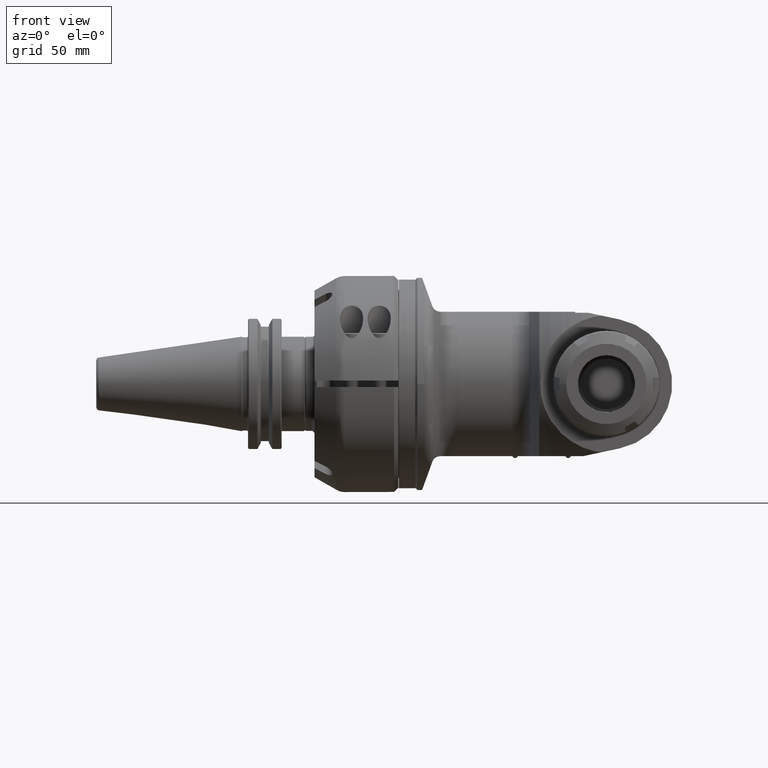
[diagram: clean part render]
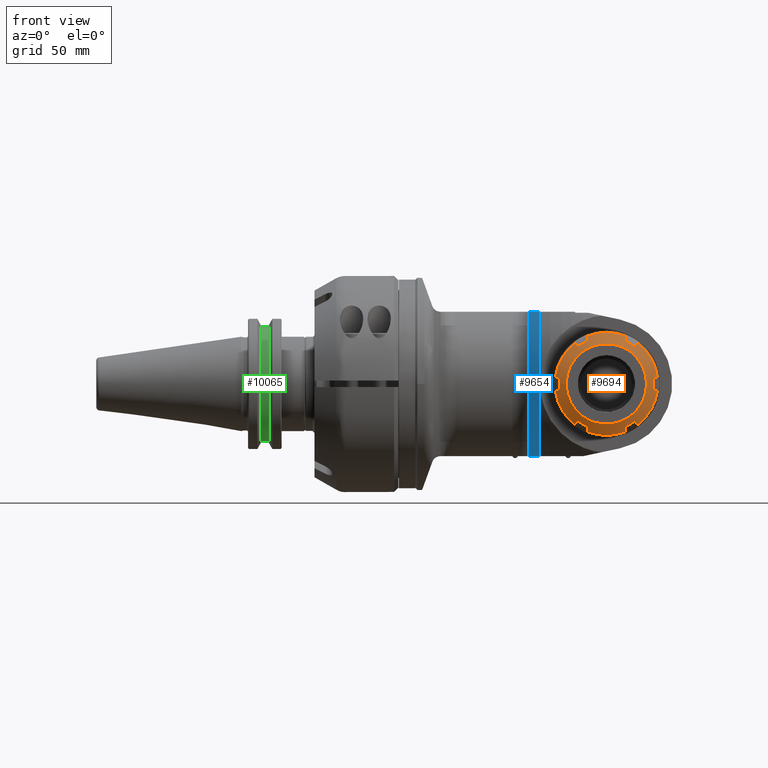
[diagram: same view with three faces highlighted in distinct colors, each labeled with its STEP entity id]
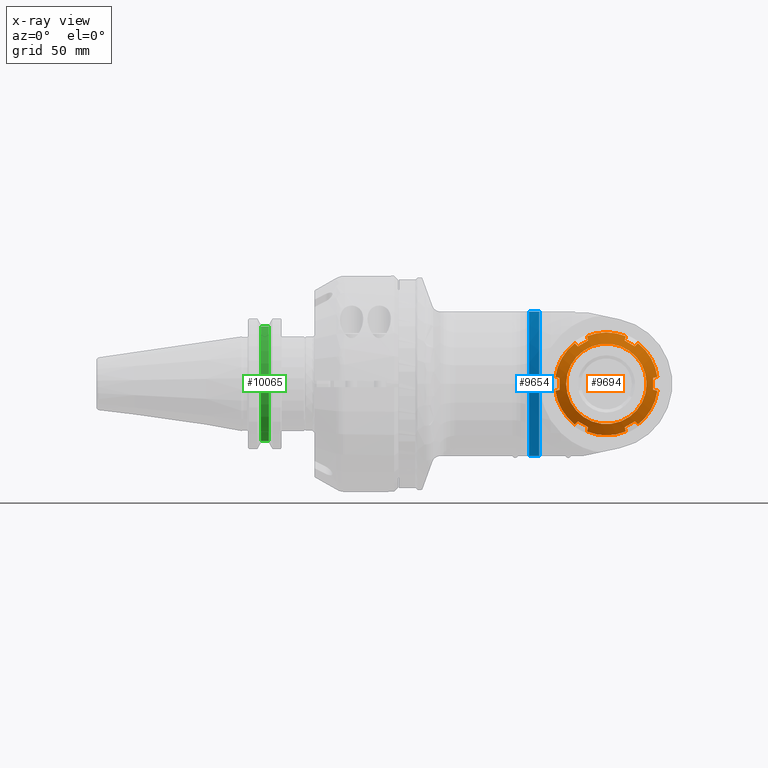
[diagram: x-ray of the same camera — body ghosted, the three highlighted faces saturated]
A machine part, front view with three faces highlighted in distinct colors.
The next image is the same camera in x-ray (body ghosted, the three faces saturated) — at least one of them is partly hidden behind the body in this view.
Their STEP definitions:

[orange] entity #9694 — the highlighted conical surface has half-angle 60 deg.
#87=CONICAL_SURFACE('',#10354,21.59391108675,1.0471975511966);
#228=(
BOUNDED_CURVE()
B_SPLINE_CURVE(2,(#19596,#19597,#19598),.UNSPECIFIED.,.F.,.F.)
B_SPLINE_CURVE_WITH_KNOTS((3,3),(2.89469476623545,3.22887960847508),
 .UNSPECIFIED.)
CURVE()
GEOMETRIC_REPRESENTATION_ITEM()
RATIONAL_B_SPLINE_CURVE((1.06939507183584,1.06415443168075,1.05677885166095))
REPRESENTATION_ITEM('')
);
#229=(
BOUNDED_CURVE()
B_SPLINE_CURVE(2,(#19610,#19611,#19612),.UNSPECIFIED.,.F.,.F.)
B_SPLINE_CURVE_WITH_KNOTS((3,3),(-3.62159789194741,-2.84214657995762),
 .UNSPECIFIED.)
CURVE()
GEOMETRIC_REPRESENTATION_ITEM()
RATIONAL_B_SPLINE_CURVE((1.35813310696781,1.36870239561259,1.35813310696781))
REPRESENTATION_ITEM('')
);
#230=(
BOUNDED_CURVE()
B_SPLINE_CURVE(2,(#19616,#19617,#19618),.UNSPECIFIED.,.F.,.F.)
B_SPLINE_CURVE_WITH_KNOTS((3,3),(2.84214657995755,3.2318722359525),
 .UNSPECIFIED.)
CURVE()
GEOMETRIC_REPRESENTATION_ITEM()
RATIONAL_B_SPLINE_CURVE((1.35813310696781,1.3634177512902,1.3634177512902))
REPRESENTATION_ITEM('')
);
#231=(
BOUNDED_CURVE()
B_SPLINE_CURVE(2,(#19620,#19621,#19622),.UNSPECIFIED.,.F.,.F.)
B_SPLINE_CURVE_WITH_KNOTS((3,3),(-3.22911818856037,-2.89492526114798),
 .UNSPECIFIED.)
CURVE()
GEOMETRIC_REPRESENTATION_ITEM()
RATIONAL_B_SPLINE_CURVE((1.05678158892041,1.06415768873716,1.0693988480908))
REPRESENTATION_ITEM('')
);
#232=(
BOUNDED_CURVE()
B_SPLINE_CURVE(2,(#19626,#19627,#19628),.UNSPECIFIED.,.F.,.F.)
B_SPLINE_CURVE_WITH_KNOTS((3,3),(2.89492526115409,3.22911818860234),
 .UNSPECIFIED.)
CURVE()
GEOMETRIC_REPRESENTATION_ITEM()
RATIONAL_B_SPLINE_CURVE((1.06939884808062,1.06415768872712,1.05678158891036))
REPRESENTATION_ITEM('')
);
#233=(
BOUNDED_CURVE()
B_SPLINE_CURVE(2,(#19630,#19631,#19632),.UNSPECIFIED.,.F.,.F.)
B_SPLINE_CURVE_WITH_KNOTS((3,3),(2.8421465799744,3.62159789192973),
 .UNSPECIFIED.)
CURVE()
GEOMETRIC_REPRESENTATION_ITEM()
RATIONAL_B_SPLINE_CURVE((1.35813310696808,1.36870239561193,1.35813310696809))
REPRESENTATION_ITEM('')
);
#234=(
BOUNDED_CURVE()
B_SPLINE_CURVE(2,(#19634,#19635,#19636),.UNSPECIFIED.,.F.,.F.)
B_SPLINE_CURVE_WITH_KNOTS((3,3),(-3.22911818859247,-2.89492526114213),
 .UNSPECIFIED.)
CURVE()
GEOMETRIC_REPRESENTATION_ITEM()
RATIONAL_B_SPLINE_CURVE((1.05678158891818,1.06415768873589,1.06939884809003))
REPRESENTATION_ITEM('')
);
#235=(
BOUNDED_CURVE()
B_SPLINE_CURVE(2,(#19640,#19641,#19642),.UNSPECIFIED.,.F.,.F.)
B_SPLINE_CURVE_WITH_KNOTS((3,3),(-1.25407539418863,-0.919882466740048),
 .UNSPECIFIED.)
CURVE()
GEOMETRIC_REPRESENTATION_ITEM()
RATIONAL_B_SPLINE_CURVE((1.06939884808267,1.06415768872903,1.05678158891205))
REPRESENTATION_ITEM('')
);
#236=(
BOUNDED_CURVE()
B_SPLINE_CURVE(2,(#19644,#19645,#19646),.UNSPECIFIED.,.F.,.F.)
B_SPLINE_CURVE_WITH_KNOTS((3,3),(2.84214657997522,3.6215978919302),
 .UNSPECIFIED.)
CURVE()
GEOMETRIC_REPRESENTATION_ITEM()
RATIONAL_B_SPLINE_CURVE((1.35813310696834,1.36870239561218,1.35813310696834))
REPRESENTATION_ITEM('')
);
#237=(
BOUNDED_CURVE()
B_SPLINE_CURVE(2,(#19648,#19649,#19650),.UNSPECIFIED.,.F.,.F.)
B_SPLINE_CURVE_WITH_KNOTS((3,3),(-3.22911818860338,-2.89492526115553),
 .UNSPECIFIED.)
CURVE()
GEOMETRIC_REPRESENTATION_ITEM()
RATIONAL_B_SPLINE_CURVE((1.05678158890996,1.06415768872668,1.06939884808015))
REPRESENTATION_ITEM('')
);
#238=(
BOUNDED_CURVE()
B_SPLINE_CURVE(2,(#19653,#19654,#19655),.UNSPECIFIED.,.F.,.F.)
B_SPLINE_CURVE_WITH_KNOTS((3,3),(-3.22887960847178,-2.89469476622933),
 .UNSPECIFIED.)
CURVE()
GEOMETRIC_REPRESENTATION_ITEM()
RATIONAL_B_SPLINE_CURVE((1.05677885166584,1.06415443168629,1.06939507184182))
REPRESENTATION_ITEM('')
);
#239=(
BOUNDED_CURVE()
B_SPLINE_CURVE(2,(#19659,#19660,#19661),.UNSPECIFIED.,.F.,.F.)
B_SPLINE_CURVE_WITH_KNOTS((3,3),(2.8949252611492,3.22911818859787),
 .UNSPECIFIED.)
CURVE()
GEOMETRIC_REPRESENTATION_ITEM()
RATIONAL_B_SPLINE_CURVE((1.06939884808536,1.06415768873154,1.0567815889143))
REPRESENTATION_ITEM('')
);
#240=(
BOUNDED_CURVE()
B_SPLINE_CURVE(2,(#19663,#19664,#19665),.UNSPECIFIED.,.F.,.F.)
B_SPLINE_CURVE_WITH_KNOTS((3,3),(-3.62159789192963,-2.84214657997429),
 .UNSPECIFIED.)
CURVE()
GEOMETRIC_REPRESENTATION_ITEM()
RATIONAL_B_SPLINE_CURVE((1.35813310696807,1.36870239561191,1.35813310696806))
REPRESENTATION_ITEM('')
);
#241=(
BOUNDED_CURVE()
B_SPLINE_CURVE(2,(#19667,#19668,#19669),.UNSPECIFIED.,.F.,.F.)
B_SPLINE_CURVE_WITH_KNOTS((3,3),(-3.22911818859985,-2.89492526107058),
 .UNSPECIFIED.)
CURVE()
GEOMETRIC_REPRESENTATION_ITEM()
RATIONAL_B_SPLINE_CURVE((1.05678158891211,1.06415768873085,1.06939884808524))
REPRESENTATION_ITEM('')
);
#242=(
BOUNDED_CURVE()
B_SPLINE_CURVE(2,(#19673,#19674,#19675),.UNSPECIFIED.,.F.,.F.)
B_SPLINE_CURVE_WITH_KNOTS((3,3),(-1.25407539419355,-0.919882466743569),
 .UNSPECIFIED.)
CURVE()
GEOMETRIC_REPRESENTATION_ITEM()
RATIONAL_B_SPLINE_CURVE((1.06939884808612,1.06415768873224,1.0567815889149))
REPRESENTATION_ITEM('')
);
#243=(
BOUNDED_CURVE()
B_SPLINE_CURVE(2,(#19677,#19678,#19679),.UNSPECIFIED.,.F.,.F.)
B_SPLINE_CURVE_WITH_KNOTS((3,3),(2.84214657997523,3.62159789193019),
 .UNSPECIFIED.)
CURVE()
GEOMETRIC_REPRESENTATION_ITEM()
RATIONAL_B_SPLINE_CURVE((1.35813310696834,1.36870239561218,1.35813310696834))
REPRESENTATION_ITEM('')
);
#244=(
BOUNDED_CURVE()
B_SPLINE_CURVE(2,(#19681,#19682,#19683),.UNSPECIFIED.,.F.,.F.)
B_SPLINE_CURVE_WITH_KNOTS((3,3),(-3.22911818860107,-2.8949252611523),
 .UNSPECIFIED.)
CURVE()
GEOMETRIC_REPRESENTATION_ITEM()
RATIONAL_B_SPLINE_CURVE((1.05678158891181,1.06415768872876,1.06939884808239))
REPRESENTATION_ITEM('')
);
#245=(
BOUNDED_CURVE()
B_SPLINE_CURVE(2,(#19687,#19688,#19689),.UNSPECIFIED.,.F.,.F.)
B_SPLINE_CURVE_WITH_KNOTS((3,3),(-1.25407539419043,-0.919882466779241),
 .UNSPECIFIED.)
CURVE()
GEOMETRIC_REPRESENTATION_ITEM()
RATIONAL_B_SPLINE_CURVE((1.06939884808778,1.06415768873435,1.05678158891792))
REPRESENTATION_ITEM('')
);
#246=(
BOUNDED_CURVE()
B_SPLINE_CURVE(2,(#19690,#19691,#19692),.UNSPECIFIED.,.F.,.F.)
B_SPLINE_CURVE_WITH_KNOTS((3,3),(3.2318722359525,3.62159789194744),
 .UNSPECIFIED.)
CURVE()
GEOMETRIC_REPRESENTATION_ITEM()
RATIONAL_B_SPLINE_CURVE((1.3634177512902,1.3634177512902,1.35813310696781))
REPRESENTATION_ITEM('')
);
#968=LINE('',#19694,#1704);
#1704=VECTOR('',#11804,21.59391108675);
#2379=FACE_OUTER_BOUND('',#2926,.T.);
#2926=EDGE_LOOP('',(#7430,#7431,#7432,#7433,#7434,#7435,#7436,#7437,#7438,
#7439,#7440,#7441,#7442,#7443,#7444,#7445,#7446,#7447,#7448,#7449,#7450,
#7451,#7452,#7453,#7454,#7455,#7456,#7457));
#3461=CIRCLE('',#10355,24.25);
#3462=CIRCLE('',#10356,24.25);
#3463=CIRCLE('',#10357,24.25);
#3464=CIRCLE('',#10358,24.25);
#3465=CIRCLE('',#10359,24.25);
#3466=CIRCLE('',#10360,24.25);
#3467=CIRCLE('',#10361,18.93782217351);
#4228=VERTEX_POINT('',#19593);
#4229=VERTEX_POINT('',#19595);
#4230=VERTEX_POINT('',#19608);
#4231=VERTEX_POINT('',#19614);
#4232=VERTEX_POINT('',#19615);
#4233=VERTEX_POINT('',#19619);
#4234=VERTEX_POINT('',#19623);
#4235=VERTEX_POINT('',#19625);
#4236=VERTEX_POINT('',#19629);
#4237=VERTEX_POINT('',#19633);
#4238=VERTEX_POINT('',#19637);
#4239=VERTEX_POINT('',#19639);
#4240=VERTEX_POINT('',#19643);
#4241=VERTEX_POINT('',#19647);
#4242=VERTEX_POINT('',#19652);
#4243=VERTEX_POINT('',#19656);
#4244=VERTEX_POINT('',#19658);
#4245=VERTEX_POINT('',#19662);
#4246=VERTEX_POINT('',#19666);
#4247=VERTEX_POINT('',#19670);
#4248=VERTEX_POINT('',#19672);
#4249=VERTEX_POINT('',#19676);
#4250=VERTEX_POINT('',#19680);
#4251=VERTEX_POINT('',#19684);
#4252=VERTEX_POINT('',#19686);
#4253=VERTEX_POINT('',#19693);
#5393=EDGE_CURVE('',#4229,#4228,#228,.T.);
#5396=EDGE_CURVE('',#4230,#4228,#229,.T.);
#5397=EDGE_CURVE('',#4231,#4232,#230,.T.);
#5398=EDGE_CURVE('',#4231,#4233,#231,.T.);
#5399=EDGE_CURVE('',#4234,#4233,#3461,.T.);
#5400=EDGE_CURVE('',#4234,#4235,#232,.T.);
#5401=EDGE_CURVE('',#4236,#4235,#233,.T.);
#5402=EDGE_CURVE('',#4236,#4237,#234,.T.);
#5403=EDGE_CURVE('',#4238,#4237,#3462,.T.);
#5404=EDGE_CURVE('',#4238,#4239,#235,.T.);
#5405=EDGE_CURVE('',#4240,#4239,#236,.T.);
#5406=EDGE_CURVE('',#4240,#4241,#237,.T.);
#5407=EDGE_CURVE('',#4229,#4241,#3463,.T.);
#5408=EDGE_CURVE('',#4230,#4242,#238,.T.);
#5409=EDGE_CURVE('',#4243,#4242,#3464,.T.);
#5410=EDGE_CURVE('',#4243,#4244,#239,.T.);
#5411=EDGE_CURVE('',#4244,#4245,#240,.T.);
#5412=EDGE_CURVE('',#4245,#4246,#241,.T.);
#5413=EDGE_CURVE('',#4247,#4246,#3465,.T.);
#5414=EDGE_CURVE('',#4247,#4248,#242,.T.);
#5415=EDGE_CURVE('',#4249,#4248,#243,.T.);
#5416=EDGE_CURVE('',#4249,#4250,#244,.T.);
#5417=EDGE_CURVE('',#4251,#4250,#3466,.T.);
#5418=EDGE_CURVE('',#4251,#4252,#245,.T.);
#5419=EDGE_CURVE('',#4232,#4252,#246,.T.);
#5420=EDGE_CURVE('',#4232,#4253,#968,.T.);
#5421=EDGE_CURVE('',#4253,#4253,#3467,.T.);
#7430=ORIENTED_EDGE('',*,*,#5397,.F.);
#7431=ORIENTED_EDGE('',*,*,#5398,.T.);
#7432=ORIENTED_EDGE('',*,*,#5399,.F.);
#7433=ORIENTED_EDGE('',*,*,#5400,.T.);
#7434=ORIENTED_EDGE('',*,*,#5401,.F.);
#7435=ORIENTED_EDGE('',*,*,#5402,.T.);
#7436=ORIENTED_EDGE('',*,*,#5403,.F.);
#7437=ORIENTED_EDGE('',*,*,#5404,.T.);
#7438=ORIENTED_EDGE('',*,*,#5405,.F.);
#7439=ORIENTED_EDGE('',*,*,#5406,.T.);
#7440=ORIENTED_EDGE('',*,*,#5407,.F.);
#7441=ORIENTED_EDGE('',*,*,#5393,.T.);
#7442=ORIENTED_EDGE('',*,*,#5396,.F.);
#7443=ORIENTED_EDGE('',*,*,#5408,.T.);
#7444=ORIENTED_EDGE('',*,*,#5409,.F.);
#7445=ORIENTED_EDGE('',*,*,#5410,.T.);
#7446=ORIENTED_EDGE('',*,*,#5411,.T.);
#7447=ORIENTED_EDGE('',*,*,#5412,.T.);
#7448=ORIENTED_EDGE('',*,*,#5413,.F.);
#7449=ORIENTED_EDGE('',*,*,#5414,.T.);
#7450=ORIENTED_EDGE('',*,*,#5415,.F.);
#7451=ORIENTED_EDGE('',*,*,#5416,.T.);
#7452=ORIENTED_EDGE('',*,*,#5417,.F.);
#7453=ORIENTED_EDGE('',*,*,#5418,.T.);
#7454=ORIENTED_EDGE('',*,*,#5419,.F.);
#7455=ORIENTED_EDGE('',*,*,#5420,.T.);
#7456=ORIENTED_EDGE('',*,*,#5421,.F.);
#7457=ORIENTED_EDGE('',*,*,#5420,.F.);
#9694=ADVANCED_FACE('',(#2379),#87,.T.);
#10354=AXIS2_PLACEMENT_3D('',#19613,#11790,#11791);
#10355=AXIS2_PLACEMENT_3D('',#19624,#11792,#11793);
#10356=AXIS2_PLACEMENT_3D('',#19638,#11794,#11795);
#10357=AXIS2_PLACEMENT_3D('',#19651,#11796,#11797);
#10358=AXIS2_PLACEMENT_3D('',#19657,#11798,#11799);
#10359=AXIS2_PLACEMENT_3D('',#19671,#11800,#11801);
#10360=AXIS2_PLACEMENT_3D('',#19685,#11802,#11803);
#10361=AXIS2_PLACEMENT_3D('',#19695,#11805,#11806);
#11790=DIRECTION('center_axis',(0.,1.,0.));
#11791=DIRECTION('ref_axis',(1.,0.,0.));
#11792=DIRECTION('center_axis',(0.,1.,0.));
#11793=DIRECTION('ref_axis',(-0.612959861260615,0.,-0.79011404776992));
#11794=DIRECTION('center_axis',(0.,1.,0.));
#11795=DIRECTION('ref_axis',(0.377778906625412,0.,-0.925895835236831));
#11796=DIRECTION('center_axis',(0.,1.,0.));
#11797=DIRECTION('ref_axis',(0.990738767886012,0.,-0.135781787466902));
#11798=DIRECTION('center_axis',(0.,1.,0.));
#11799=DIRECTION('ref_axis',(0.612959861261516,0.,0.790114047769221));
#11800=DIRECTION('center_axis',(0.,1.,0.));
#11801=DIRECTION('ref_axis',(-0.377778906625377,0.,0.925895835236845));
#11802=DIRECTION('center_axis',(0.,1.,0.));
#11803=DIRECTION('ref_axis',(-0.990738767885862,0.,0.135781787467995));
#11804=DIRECTION('',(0.866025403784439,-0.5,-1.06057523872491E-16));
#11805=DIRECTION('center_axis',(0.,-1.,0.));
#11806=DIRECTION('ref_axis',(-1.,0.,0.));
#19593=CARTESIAN_POINT('',(300.063097000463,-88.6332033554909,-2.75000000042511));
#19595=CARTESIAN_POINT('',(302.0885121212,-87.43301270189,-3.292708346073));
#19596=CARTESIAN_POINT('Ctrl Pts',(302.088512121212,-87.4330127019074,-3.2927083460665));
#19597=CARTESIAN_POINT('Ctrl Pts',(301.030454437406,-88.0604502298487,-3.0092026441453));
#19598=CARTESIAN_POINT('Ctrl Pts',(300.063097000737,-88.6332033558505,-2.75000000019751));
#19608=CARTESIAN_POINT('',(300.063097000463,-88.6332033554905,2.75000000042533));
#19610=CARTESIAN_POINT('Ctrl Pts',(300.063097,-88.6332033562535,2.75000000046884));
#19611=CARTESIAN_POINT('Ctrl Pts',(300.063097,-88.830134946681,1.15019105351166E-13));
#19612=CARTESIAN_POINT('Ctrl Pts',(300.063097,-88.6332033562536,-2.75000000046861));
#19613=CARTESIAN_POINT('Origin',(278.063097,-88.96650635095,-1.43568433641E-14));
#19614=CARTESIAN_POINT('',(256.063096999536,-88.6332033554901,-2.75000000042557));
#19615=CARTESIAN_POINT('',(256.063097,-88.7320508075702,-1.15313688717429E-14));
#19616=CARTESIAN_POINT('Ctrl Pts',(256.063097,-88.6332033562535,-2.75000000046913));
#19617=CARTESIAN_POINT('Ctrl Pts',(256.063097,-88.7320508075702,-1.36967046279995));
#19618=CARTESIAN_POINT('Ctrl Pts',(256.063097,-88.7320508075702,-1.14001173375099E-14));
#19619=CARTESIAN_POINT('',(254.0376818788,-87.4330127019,-3.292708346078));
#19620=CARTESIAN_POINT('Ctrl Pts',(256.063096999262,-88.6332033558502,-2.75000000019772));
#19621=CARTESIAN_POINT('Ctrl Pts',(255.095739562595,-88.06045022985,-3.00920264414479));
#19622=CARTESIAN_POINT('Ctrl Pts',(254.037681878791,-87.4330127019095,-3.29270834606566));
#19623=CARTESIAN_POINT('',(263.1988203644,-87.43301270189,-19.16026565842));
#19624=CARTESIAN_POINT('Origin',(278.063097,-87.43301270189,-1.418659136837E-14));
#19625=CARTESIAN_POINT('',(264.681527139155,-88.6332033557009,-17.6775588834032));
#19626=CARTESIAN_POINT('Ctrl Pts',(263.198820364423,-87.4330127018831,-19.1602656584373));
#19627=CARTESIAN_POINT('Ctrl Pts',(263.9733723464,-88.0604502298996,-18.3857136764602));
#19628=CARTESIAN_POINT('Ctrl Pts',(264.681527139199,-88.6332033559643,-17.6775588836607));
#19629=CARTESIAN_POINT('',(269.4446668605,-88.6332033557008,-20.42755888371));
#19630=CARTESIAN_POINT('Ctrl Pts',(269.444666860705,-88.633203356259,-20.427558883436));
#19631=CARTESIAN_POINT('Ctrl Pts',(267.063096999997,-88.8301349466691,-19.0525588832626));
#19632=CARTESIAN_POINT('Ctrl Pts',(264.68152713929,-88.6332033562591,-17.6775588830893));
#19633=CARTESIAN_POINT('',(268.9019585143,-87.43301270189,-22.45297400449));
#19634=CARTESIAN_POINT('Ctrl Pts',(269.444666860255,-88.6332033559643,-20.4275588838003));
#19635=CARTESIAN_POINT('Ctrl Pts',(269.185464216281,-88.0604502299034,-21.3949163205697));
#19636=CARTESIAN_POINT('Ctrl Pts',(268.901958514327,-87.4330127018899,-22.4529740044971));
#19637=CARTESIAN_POINT('',(287.2242354857,-87.43301270189,-22.45297400449));
#19638=CARTESIAN_POINT('Origin',(278.063097,-87.43301270189,-1.418659136837E-14));
#19639=CARTESIAN_POINT('',(286.681527139498,-88.633203355705,-20.4275588837029));
#19640=CARTESIAN_POINT('Ctrl Pts',(287.224235485673,-87.4330127018898,-22.4529740044971));
#19641=CARTESIAN_POINT('Ctrl Pts',(286.940729783718,-88.0604502299051,-21.3949163205667));
#19642=CARTESIAN_POINT('Ctrl Pts',(286.681527139743,-88.6332033559684,-20.4275588837931));
#19643=CARTESIAN_POINT('',(291.44466686084,-88.6332033557051,-17.677558883398));
#19644=CARTESIAN_POINT('Ctrl Pts',(291.444666860705,-88.6332033562633,-17.677558883084));
#19645=CARTESIAN_POINT('Ctrl Pts',(289.063096999999,-88.8301349466732,-19.0525588832564));
#19646=CARTESIAN_POINT('Ctrl Pts',(286.681527139293,-88.6332033562632,-20.4275588834289));
#19647=CARTESIAN_POINT('',(292.9273736356,-87.4330127019,-19.16026565841));
#19648=CARTESIAN_POINT('Ctrl Pts',(291.444666860796,-88.6332033559685,-17.6775588836555));
#19649=CARTESIAN_POINT('Ctrl Pts',(292.152821653594,-88.0604502299044,-18.3857136764542));
#19650=CARTESIAN_POINT('Ctrl Pts',(292.92737363557,-87.4330127018887,-19.1602656584304));
#19651=CARTESIAN_POINT('Origin',(278.063097,-87.43301270189,-1.418659136837E-14));
#19652=CARTESIAN_POINT('',(302.0885121212,-87.43301270189,3.292708346099));
#19653=CARTESIAN_POINT('Ctrl Pts',(300.063097000738,-88.6332033558504,2.75000000019762));
#19654=CARTESIAN_POINT('Ctrl Pts',(301.030454437409,-88.0604502298476,3.00920264414587));
#19655=CARTESIAN_POINT('Ctrl Pts',(302.088512121217,-87.4330127019046,3.29270834606782));
#19656=CARTESIAN_POINT('',(292.9273736356,-87.4330127019,19.16026565841));
#19657=CARTESIAN_POINT('Origin',(278.063097,-87.43301270189,-1.418659136837E-14));
#19658=CARTESIAN_POINT('',(291.444666860845,-88.6332033557009,17.6775588834032));
#19659=CARTESIAN_POINT('Ctrl Pts',(292.92737363557,-87.4330127018887,19.1602656584304));
#19660=CARTESIAN_POINT('Ctrl Pts',(292.152821653597,-88.0604502299025,18.3857136764567));
#19661=CARTESIAN_POINT('Ctrl Pts',(291.444666860801,-88.6332033559644,17.6775588836606));
#19662=CARTESIAN_POINT('',(286.6815271395,-88.6332033557007,20.42755888371));
#19663=CARTESIAN_POINT('Ctrl Pts',(291.44466686071,-88.6332033562591,17.6775588830892));
#19664=CARTESIAN_POINT('Ctrl Pts',(289.063097000003,-88.8301349466691,19.0525588832626));
#19665=CARTESIAN_POINT('Ctrl Pts',(286.681527139295,-88.633203356259,20.427558883436));
#19666=CARTESIAN_POINT('',(287.2242354858,-87.43301270159,22.45297400502));
#19667=CARTESIAN_POINT('Ctrl Pts',(286.681527139745,-88.6332033559642,20.4275588838003));
#19668=CARTESIAN_POINT('Ctrl Pts',(286.940729783783,-88.0604502297633,21.394916320806));
#19669=CARTESIAN_POINT('Ctrl Pts',(287.224235485812,-87.4330127015837,22.4529740050132));
#19670=CARTESIAN_POINT('',(268.9019585143,-87.43301270189,22.45297400449));
#19671=CARTESIAN_POINT('Origin',(278.063097,-87.43301270189,-1.418659136837E-14));
#19672=CARTESIAN_POINT('',(269.444666860502,-88.633203355705,20.4275588837029));
#19673=CARTESIAN_POINT('Ctrl Pts',(268.901958514327,-87.4330127018899,22.4529740044971));
#19674=CARTESIAN_POINT('Ctrl Pts',(269.185464216282,-88.0604502299054,21.3949163205663));
#19675=CARTESIAN_POINT('Ctrl Pts',(269.444666860257,-88.6332033559685,20.4275588837932));
#19676=CARTESIAN_POINT('',(264.68152713916,-88.633203355705,17.677558883398));
#19677=CARTESIAN_POINT('Ctrl Pts',(264.681527139295,-88.6332033562633,17.677558883084));
#19678=CARTESIAN_POINT('Ctrl Pts',(267.063097000001,-88.8301349466731,19.0525588832564));
#19679=CARTESIAN_POINT('Ctrl Pts',(269.444666860707,-88.6332033562632,20.4275588834289));
#19680=CARTESIAN_POINT('',(263.1988203644,-87.4330127019,19.16026565841));
#19681=CARTESIAN_POINT('Ctrl Pts',(264.681527139204,-88.6332033559685,17.6775588836555));
#19682=CARTESIAN_POINT('Ctrl Pts',(263.973372346406,-88.0604502299046,18.385713676454));
#19683=CARTESIAN_POINT('Ctrl Pts',(263.19882036443,-87.4330127018887,19.1602656584305));
#19684=CARTESIAN_POINT('',(254.0376818788,-87.4330127019,3.292708346078));
#19685=CARTESIAN_POINT('Origin',(278.063097,-87.43301270189,-1.418659136837E-14));
#19686=CARTESIAN_POINT('',(256.063096999536,-88.6332033554901,2.75000000042554));
#19687=CARTESIAN_POINT('Ctrl Pts',(254.037681878791,-87.4330127019094,3.29270834606565));
#19688=CARTESIAN_POINT('Ctrl Pts',(255.095739562595,-88.0604502298497,3.00920264414488));
#19689=CARTESIAN_POINT('Ctrl Pts',(256.063096999262,-88.6332033558502,2.75000000019771));
#19690=CARTESIAN_POINT('Ctrl Pts',(256.063097,-88.7320508075702,-1.14001173375099E-14));
#19691=CARTESIAN_POINT('Ctrl Pts',(256.063097,-88.7320508075702,1.36967046279991));
#19692=CARTESIAN_POINT('Ctrl Pts',(256.063097,-88.6332033562535,2.75000000046908));
#19693=CARTESIAN_POINT('',(259.1252748265,-90.5,-1.330713956505E-14));
#19694=CARTESIAN_POINT('',(256.46918591325,-88.96650635095,-1.17123519547539E-14));
#19695=CARTESIAN_POINT('Origin',(278.063097,-90.5,-1.452709535983E-14));

[blue] entity #9654 — the highlighted conical surface has half-angle 60 deg.
#83=CONICAL_SURFACE('',#10288,44.66746821203,1.0471975511966);
#189=(
BOUNDED_CURVE()
B_SPLINE_CURVE(2,(#13737,#13738,#13739),.UNSPECIFIED.,.F.,.F.)
B_SPLINE_CURVE_WITH_KNOTS((3,3),(12.3175529035878,13.9654344153438),
 .UNSPECIFIED.)
CURVE()
GEOMETRIC_REPRESENTATION_ITEM()
RATIONAL_B_SPLINE_CURVE((1.61717422063226,1.55028507239193,1.45445248874682))
REPRESENTATION_ITEM('')
);
#214=(
BOUNDED_CURVE()
B_SPLINE_CURVE(2,(#13987,#13988,#13989),.UNSPECIFIED.,.F.,.F.)
B_SPLINE_CURVE_WITH_KNOTS((3,3),(2.5215742486305,4.06301752668661),
 .UNSPECIFIED.)
CURVE()
GEOMETRIC_REPRESENTATION_ITEM()
RATIONAL_B_SPLINE_CURVE((1.36765630309663,1.4577699631041,1.52066742170751))
REPRESENTATION_ITEM('')
);
#2339=FACE_OUTER_BOUND('',#2871,.T.);
#2871=EDGE_LOOP('',(#6810,#6811,#6812,#6813));
#3435=CIRCLE('',#10281,48.83493642406);
#3439=CIRCLE('',#10289,40.5);
#3793=VERTEX_POINT('',#13732);
#3794=VERTEX_POINT('',#13736);
#3849=VERTEX_POINT('',#13975);
#3850=VERTEX_POINT('',#13986);
#4860=EDGE_CURVE('',#3794,#3793,#189,.T.);
#4928=EDGE_CURVE('',#3850,#3849,#214,.T.);
#5076=EDGE_CURVE('',#3793,#3850,#3435,.T.);
#5080=EDGE_CURVE('',#3794,#3849,#3439,.T.);
#6810=ORIENTED_EDGE('',*,*,#5080,.F.);
#6811=ORIENTED_EDGE('',*,*,#4860,.T.);
#6812=ORIENTED_EDGE('',*,*,#5076,.T.);
#6813=ORIENTED_EDGE('',*,*,#4928,.T.);
#9654=ADVANCED_FACE('',(#2339),#83,.T.);
#10281=AXIS2_PLACEMENT_3D('',#18793,#11381,#11382);
#10288=AXIS2_PLACEMENT_3D('',#18800,#11395,#11396);
#10289=AXIS2_PLACEMENT_3D('',#18801,#11397,#11398);
#11381=DIRECTION('center_axis',(-1.,0.,0.));
#11382=DIRECTION('ref_axis',(0.,-1.,0.));
#11395=DIRECTION('center_axis',(1.,0.,0.));
#11396=DIRECTION('ref_axis',(0.,-1.,0.));
#11397=DIRECTION('center_axis',(-1.,0.,0.));
#11398=DIRECTION('ref_axis',(0.,-1.,0.));
#13732=CARTESIAN_POINT('',(246.4733509227,-35.05497133849,-34.));
#13736=CARTESIAN_POINT('',(241.6611731346,-22.00568108462,-34.));
#13737=CARTESIAN_POINT('Ctrl Pts',(241.661173134573,-22.0056810847525,-34.));
#13738=CARTESIAN_POINT('Ctrl Pts',(243.517009779102,-27.9215777812984,-34.));
#13739=CARTESIAN_POINT('Ctrl Pts',(246.473350922663,-35.0549713385052,-34.));
#13975=CARTESIAN_POINT('',(241.6611731346,-22.00568108465,34.));
#13986=CARTESIAN_POINT('',(246.4733509227,-35.05497133849,34.));
#13987=CARTESIAN_POINT('Ctrl Pts',(246.473350922763,-35.0549713387466,34.));
#13988=CARTESIAN_POINT('Ctrl Pts',(243.517009779118,-27.921577781361,34.));
#13989=CARTESIAN_POINT('Ctrl Pts',(241.661173134554,-22.0056810846926,34.));
#18793=CARTESIAN_POINT('Origin',(246.4733509227,0.,0.));
#18800=CARTESIAN_POINT('Origin',(244.0672620286,0.,0.));
#18801=CARTESIAN_POINT('Origin',(241.6611731346,0.,0.));

[green] entity #10065 — the highlighted cylindrical surface (partial cylindrical patch) has radius 28.1815 mm, axis along (-1, 0, 0).
#1377=LINE('',#63254,#2113);
#1379=LINE('',#63263,#2115);
#2113=VECTOR('',#13483,3.835);
#2115=VECTOR('',#13493,3.835);
#2240=CYLINDRICAL_SURFACE('',#11013,28.1815);
#2750=FACE_OUTER_BOUND('',#3349,.T.);
#3349=EDGE_LOOP('',(#9246,#9247,#9248,#9249));
#3737=CIRCLE('',#10998,28.1815);
#3743=CIRCLE('',#11012,28.1815);
#4792=VERTEX_POINT('',#63203);
#4798=VERTEX_POINT('',#63252);
#4799=VERTEX_POINT('',#63256);
#4801=VERTEX_POINT('',#63262);
#6275=EDGE_CURVE('',#4792,#4798,#1377,.T.);
#6278=EDGE_CURVE('',#4792,#4799,#3737,.T.);
#6279=EDGE_CURVE('',#4801,#4799,#1379,.T.);
#6292=EDGE_CURVE('',#4801,#4798,#3743,.T.);
#9246=ORIENTED_EDGE('',*,*,#6275,.T.);
#9247=ORIENTED_EDGE('',*,*,#6292,.F.);
#9248=ORIENTED_EDGE('',*,*,#6279,.T.);
#9249=ORIENTED_EDGE('',*,*,#6278,.F.);
#10065=ADVANCED_FACE('',(#2750),#2240,.T.);
#10998=AXIS2_PLACEMENT_3D('',#63260,#13489,#13490);
#11012=AXIS2_PLACEMENT_3D('',#63324,#13521,#13522);
#11013=AXIS2_PLACEMENT_3D('',#63325,#13523,#13524);
#13483=DIRECTION('',(-1.,0.,0.));
#13489=DIRECTION('center_axis',(1.,0.,0.));
#13490=DIRECTION('ref_axis',(0.,-0.290669410783691,0.95682354362477));
#13493=DIRECTION('',(1.,0.,0.));
#13521=DIRECTION('center_axis',(-1.,0.,0.));
#13522=DIRECTION('ref_axis',(0.,-0.290669410783691,-0.95682354362477));
#13523=DIRECTION('center_axis',(-1.,0.,0.));
#13524=DIRECTION('ref_axis',(0.,0.,-1.));
#63203=CARTESIAN_POINT('',(-72.948,-8.1915,26.96472269466));
#63252=CARTESIAN_POINT('',(-76.783,-8.1915,26.96472269466));
#63254=CARTESIAN_POINT('',(-72.948,-8.1915,26.96472269466));
#63256=CARTESIAN_POINT('',(-72.948,-8.1915,-26.96472269466));
#63260=CARTESIAN_POINT('Origin',(-72.948,0.,0.));
#63262=CARTESIAN_POINT('',(-76.783,-8.1915,-26.96472269466));
#63263=CARTESIAN_POINT('',(-76.783,-8.1915,-26.96472269466));
#63324=CARTESIAN_POINT('Origin',(-76.783,0.,0.));
#63325=CARTESIAN_POINT('Origin',(-74.8655,0.,0.));